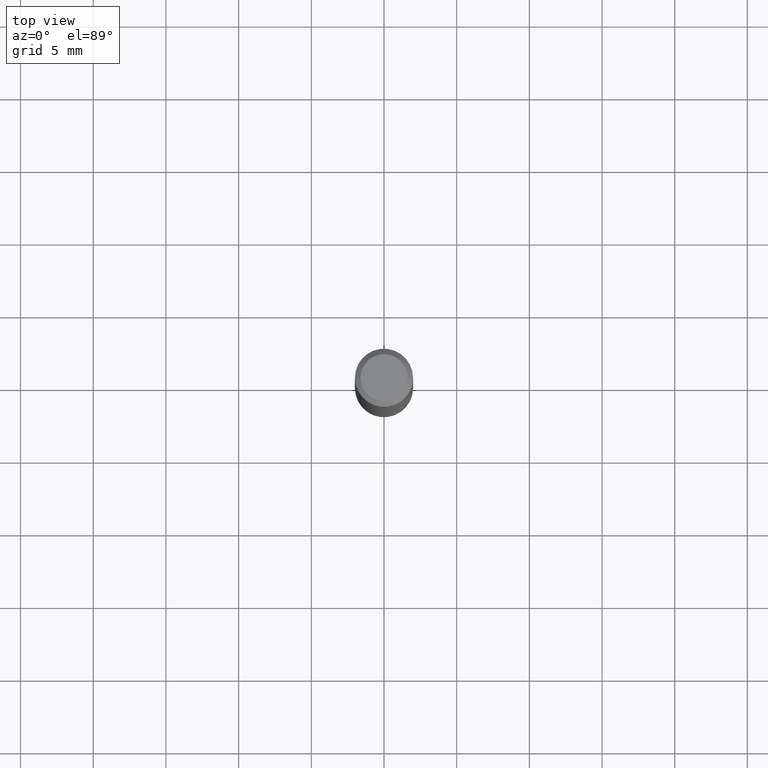
[diagram: clean part render]
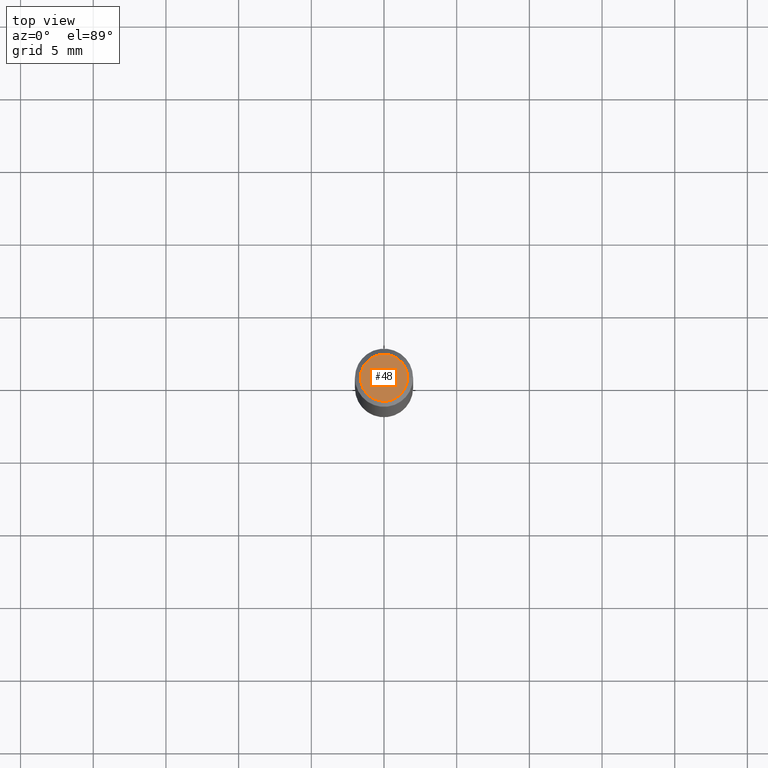
[diagram: same view with one face highlighted and labeled with its STEP entity id]
A machine part, top view. The second image highlights one B-rep face of the part: STEP entity #48.
In plain terms, the highlighted planar face has unit normal (0, -0, -1).
Its self-contained STEP definition (entity closure, byte-faithful):
#6 = FACE_OUTER_BOUND ( 'NONE', #106, .T. ) ;
#8 = EDGE_CURVE ( 'NONE', #281, #215, #100, .T. ) ;
#15 = CARTESIAN_POINT ( 'NONE',  ( 0.06375000000000000111, -5.149965923825455224E-16, -1.739639682307599153E-16 ) ) ;
#48 = ADVANCED_FACE ( 'NONE', ( #6 ), #365, .F. ) ;
#77 = CARTESIAN_POINT ( 'NONE',  ( 4.451638707024993845E-16, 0.06375000000000000111, -3.095639194666321891E-16 ) ) ;
#100 = CIRCLE ( 'NONE', #175, 0.06375000000000000111 ) ;
#106 = EDGE_LOOP ( 'NONE', ( #316, #249 ) ) ;
#109 = DIRECTION ( 'NONE',  ( 2.438088387897960049E-29, -3.491481338843145188E-15, -1.000000000000000000 ) ) ;
#155 = DIRECTION ( 'NONE',  ( 1.000000000000000000, -6.982962677686265922E-15, 4.852736867747365646E-29 ) ) ;
#175 = AXIS2_PLACEMENT_3D ( 'NONE', #322, #391, #155 ) ;
#182 = DIRECTION ( 'NONE',  ( -1.000000000000000000, 6.982962677686265922E-15, -4.876176775795935793E-29 ) ) ;
#184 = AXIS2_PLACEMENT_3D ( 'NONE', #77, #109, #182 ) ;
#202 = DIRECTION ( 'NONE',  ( 1.000000000000000000, -6.982962677686265922E-15, 4.852736867747365646E-29 ) ) ;
#206 = CIRCLE ( 'NONE', #342, 0.06375000000000000111 ) ;
#215 = VERTEX_POINT ( 'NONE', #15 ) ;
#249 = ORIENTED_EDGE ( 'NONE', *, *, #361, .T. ) ;
#276 = DIRECTION ( 'NONE',  ( -2.445468806185136597E-29, 3.491481338843145583E-15, 1.000000000000000000 ) ) ;
#281 = VERTEX_POINT ( 'NONE', #370 ) ;
#316 = ORIENTED_EDGE ( 'NONE', *, *, #8, .T. ) ;
#322 = CARTESIAN_POINT ( 'NONE',  ( 4.254234577085137213E-45, -6.073919487088118039E-31, -1.739639682307632927E-16 ) ) ;
#342 = AXIS2_PLACEMENT_3D ( 'NONE', #463, #276, #202 ) ;
#361 = EDGE_CURVE ( 'NONE', #215, #281, #206, .T. ) ;
#365 = PLANE ( 'NONE',  #184 ) ;
#370 = CARTESIAN_POINT ( 'NONE',  ( -0.06375000000000000111, 4.713499807438226283E-16, -1.739639682307664974E-16 ) ) ;
#391 = DIRECTION ( 'NONE',  ( -2.445468806185136597E-29, 3.491481338843145583E-15, 1.000000000000000000 ) ) ;
#463 = CARTESIAN_POINT ( 'NONE',  ( 4.254234577085137213E-45, -6.073919487088118039E-31, -1.739639682307632927E-16 ) ) ;